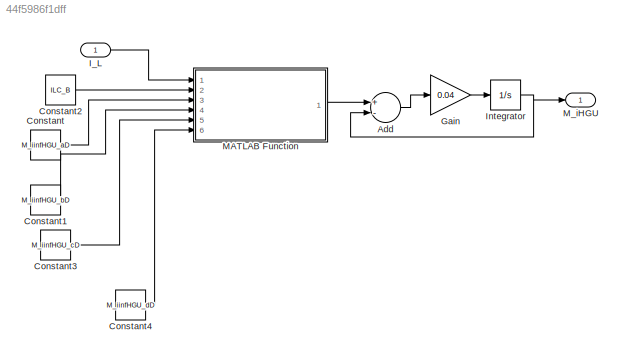
MODEL slx_44f5986f1dff
KIND model
CONFIG AbsTol = auto
CONFIG EnableMultiTasking = off
CONFIG FixedStep = auto
CONFIG MaxStep = auto
CONFIG MinStep = auto
CONFIG RelTol = 1e-3
CONFIG SampleTimeConstraint = Unconstrained
CONFIG Solver = VariableStepAuto
CONFIG SolverName = VariableStepAuto
CONFIG StartTime = 0.0
CONFIG StopTime = 10.0
BLOCK [Sum] Add
  InputSameDT = off
  Inputs = +-
  OutDataTypeStr = Inherit: Inherit via internal rule
  Ports = [2, 1]
  SaturateOnIntegerOverflow = off
BLOCK [Constant] Constant
  Value = M_iinfHGU_aD
BLOCK [Constant] Constant1
  Value = M_iinfHGU_bD
BLOCK [Constant] Constant2
  Value = ILC_B
BLOCK [Constant] Constant3
  Value = M_iinfHGU_cD
BLOCK [Constant] Constant4
  Value = M_iinfHGU_dD
BLOCK [Gain] Gain
  Gain = 0.04
  OutDataTypeStr = Inherit: Inherit via internal rule
  ParamDataTypeStr = Inherit: Inherit via internal rule
  SaturateOnIntegerOverflow = off
BLOCK [Inport] I_L
  IconDisplay = Port number
BLOCK [Integrator] Integrator
  Ports = [1, 1]
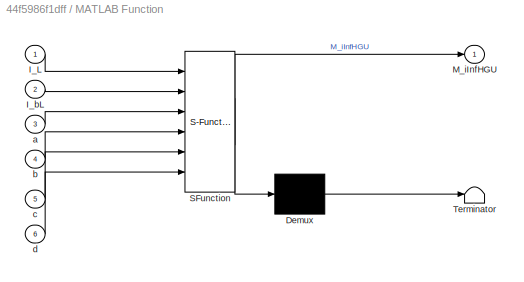
BLOCK [SubSystem] MATLAB Function
  ErrorFcn = Stateflow.Translate.translate
  PermitHierarchicalResolution = ExplicitOnly
  Ports = [6, 1]
  RequestExecContextInheritance = off
  SFBlockType = MATLAB Function
  TreatAsAtomicUnit = on
BLOCK [Demux] MATLAB Function/ Demux 
  Outputs = 1
  Ports = [1, 1]
BLOCK [S-Function] MATLAB Function/ SFunction 
  EnableBusSupport = on
  FunctionName = sf_sfun
  PortCounts = [6 2]
  Ports = [6, 2]
  SFcnIsStateOwnerBlock = off
  SFunctionDeploymentMode = off
  Tag = Stateflow S-Function M_iHGU 2
BLOCK [Terminator] MATLAB Function/ Terminator 
BLOCK [Inport] MATLAB Function/I_L
  IconDisplay = Port number
BLOCK [Inport] MATLAB Function/I_bL
  IconDisplay = Port number
  Port = 2
BLOCK [Outport] MATLAB Function/M_iInfHGU
  IconDisplay = Port number
BLOCK [Inport] MATLAB Function/a
  IconDisplay = Port number
  Port = 3
BLOCK [Inport] MATLAB Function/b
  IconDisplay = Port number
  Port = 4
BLOCK [Inport] MATLAB Function/c
  IconDisplay = Port number
  Port = 5
BLOCK [Inport] MATLAB Function/d
  IconDisplay = Port number
  Port = 6
BLOCK [Outport] M_iHGU
  IconDisplay = Port number
LINE Add:1 -> Gain:1
LINE Constant1:1 -> MATLAB Function:4
LINE Constant2:1 -> MATLAB Function:2
LINE Constant3:1 -> MATLAB Function:5
LINE Constant4:1 -> MATLAB Function:6
LINE Constant:1 -> MATLAB Function:3
LINE Gain:1 -> Integrator:1
LINE I_L:1 -> MATLAB Function:1
NET Integrator:1 -> Add:2, M_iHGU:1
LINE MATLAB Function:1 -> Add:1
note: NET lines group one-source signal fan-out (src -> all destinations, sorted); 1:1 wires keep LINE
CHART MATLAB Function states=1 transitions=1
  STATE_LABEL 'eML_blk_kernel()'
  STATE_LABEL 'SCRIPT:\nfunction M_iInfHGU = fcn(I_L, I_bL, a, b, c, d)\nM_iInfHGU = a+ b*tanh(c*I_L/I_bL + d);\n'
